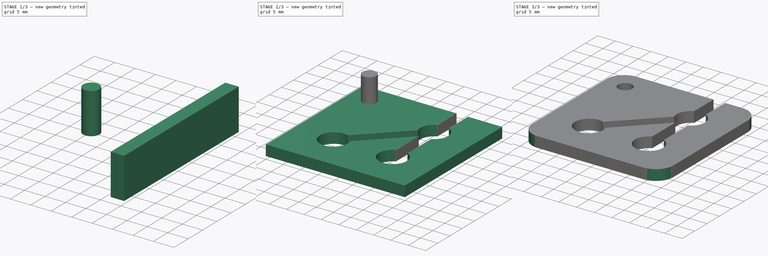
[diagram: build sequence overview — one tinted view per stage of 3, left to right]
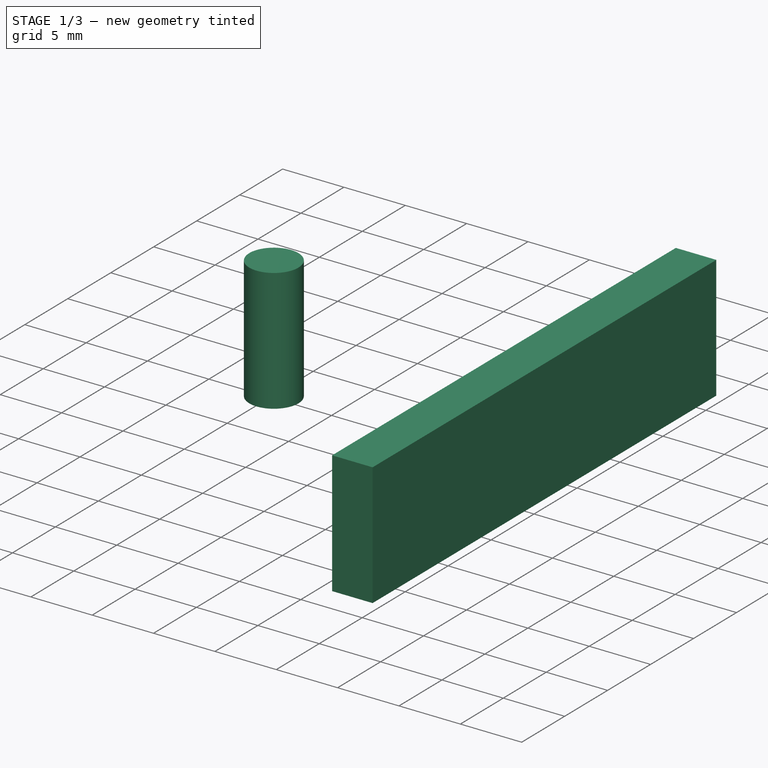
[diagram: stage 1 of 3 — iso view after this stage's code; geometry added in this stage tinted green]
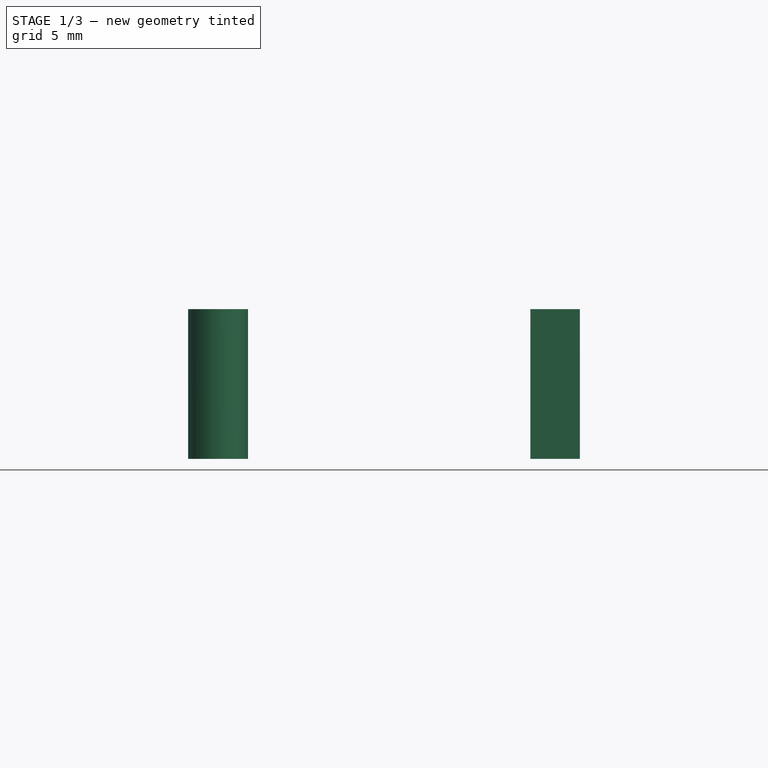
[diagram: stage 1 of 3 — front view after this stage's code; geometry added in this stage tinted green]
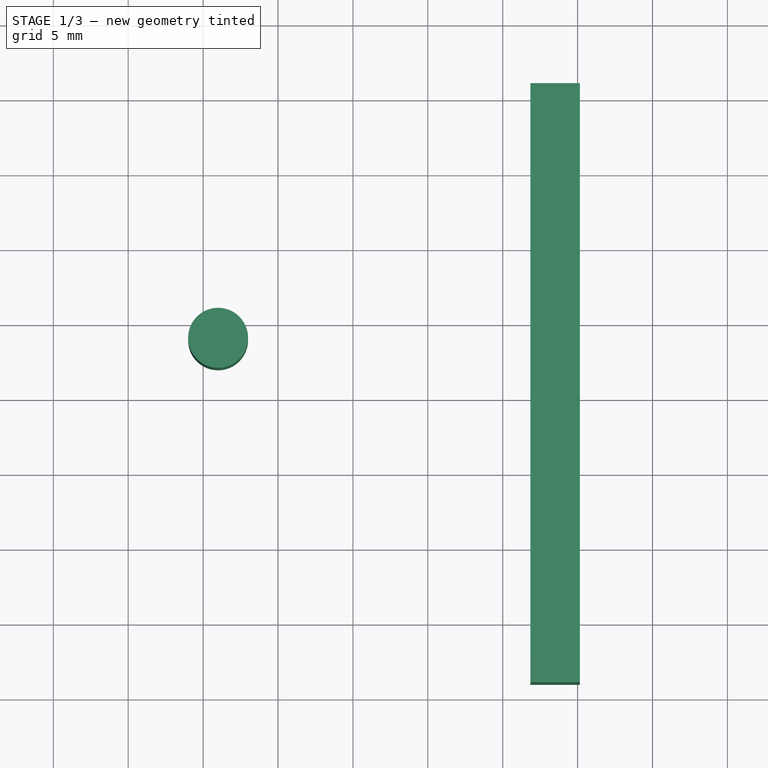
[diagram: stage 1 of 3 — top view after this stage's code; geometry added in this stage tinted green]
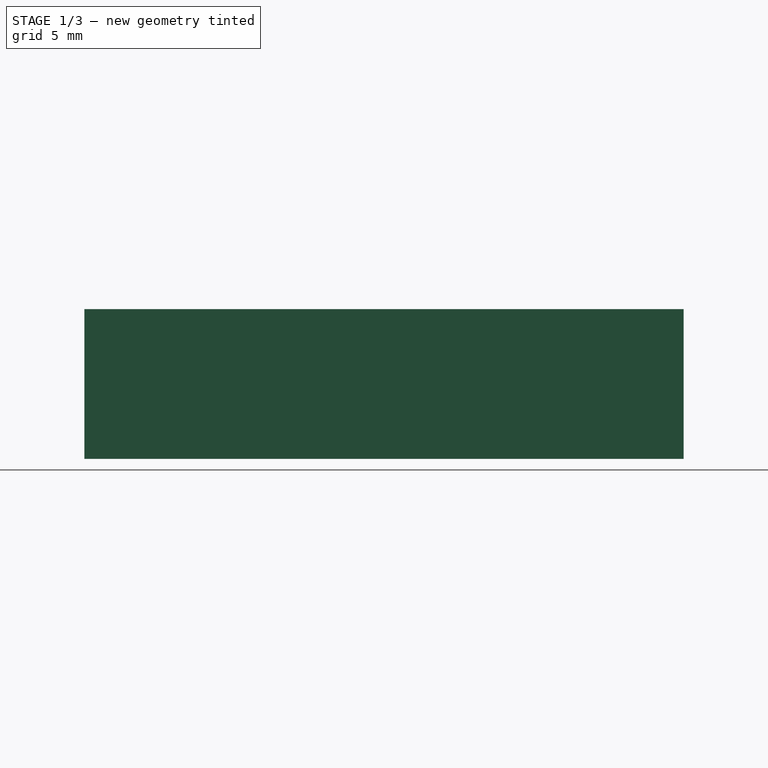
[diagram: stage 1 of 3 — right view after this stage's code; geometry added in this stage tinted green]
FCSTD DOCUMENT  (FreeCAD 0.14R3700 (Git))
Label: git
License: CC-BY 3.0
LicenseURL: http://creativecommons.org/licenses/by/3.0/
objects: Part::Box×2, Part::Cut×2, Part::Feature×2, Sketcher::SketchObject×1, PartDesign::Pocket×1, Part::Fillet×1, Part::Cylinder×1
note: 11 computed .brp shape members not serialized (recipe doc carries the construction recipe); baked Part::Feature solids carry a one-line shape summary decoded from their .brp

FEATURE [Part::Box] Box001  label="Cubo001"
  Height = 10
  Length = 3.3
  Placement = pos=(26.85,11,0) rot=(0,0,1;0rad)
  Width = 40
FEATURE [Part::Cylinder] Cylinder  label="Cilindro"
  Angle = 360
  Height = 10
  Placement = pos=(6,34,0) rot=(0,0,1;0rad)
  Radius = 2
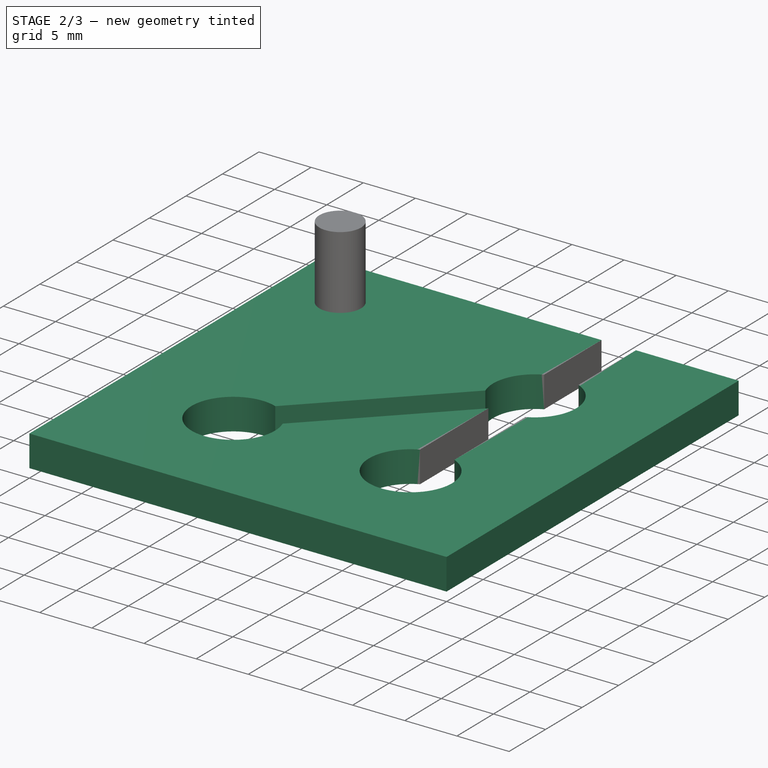
[diagram: stage 2 of 3 — iso view after this stage's code; geometry added in this stage tinted green]
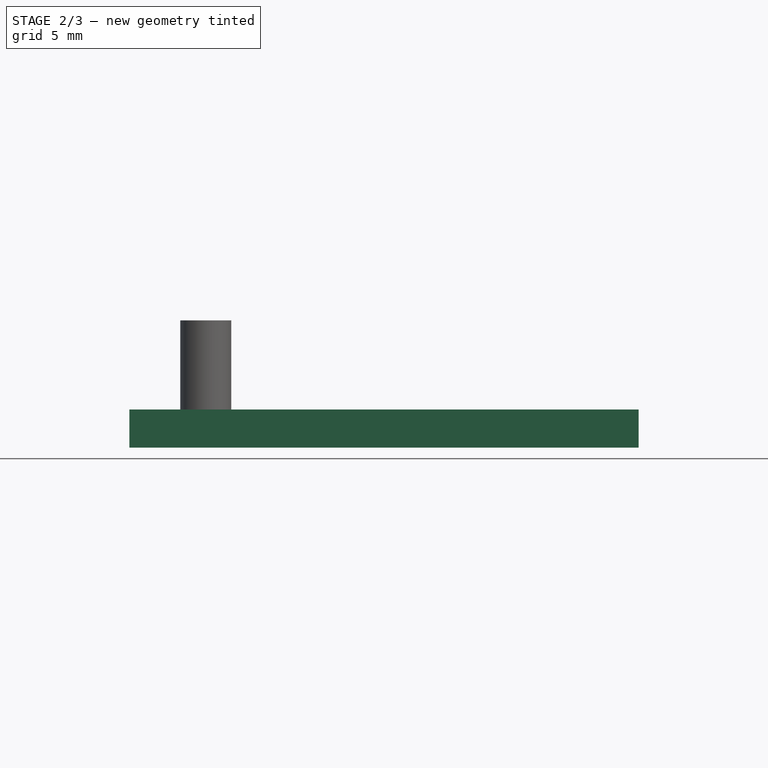
[diagram: stage 2 of 3 — front view after this stage's code; geometry added in this stage tinted green]
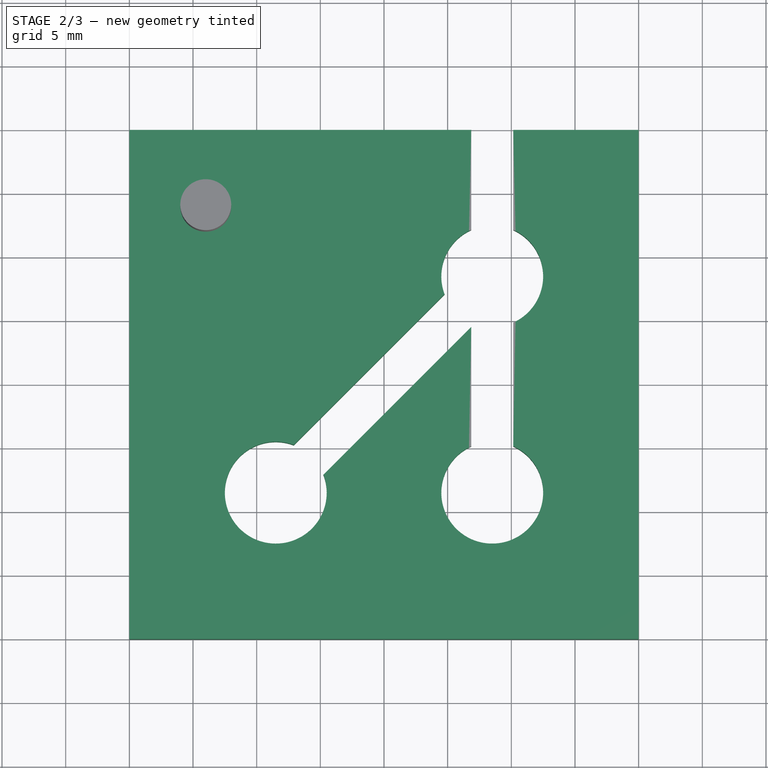
[diagram: stage 2 of 3 — top view after this stage's code; geometry added in this stage tinted green]
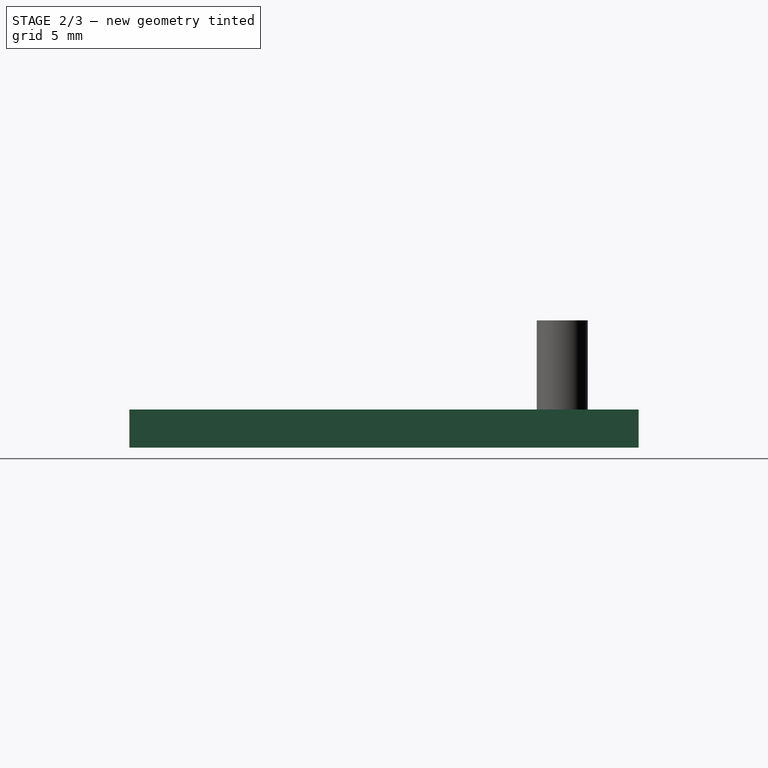
[diagram: stage 2 of 3 — right view after this stage's code; geometry added in this stage tinted green]
FEATURE [Part::Box] Box  label="Cubo"
  Height = 3
  Length = 40
  Width = 40
FEATURE [Sketcher::SketchObject] Sketch
  Placement = pos=(0,0,3) rot=(0,0,1;0rad)
  Support = -> Box [Face6]
  sketch-geometry (7):
    g0: LineSegment [constr] StartX=28.5 StartY=28.5 StartZ=0 EndX=28.5 EndY=11.5 EndZ=0
    g1: ArcOfCircle CenterX=28.5 CenterY=28.5 CenterZ=0 NormalX=0 NormalY=0 NormalZ=1 Radius=4 StartAngle=4.35219 EndAngle=9.78498
    g2: Circle CenterX=28.5 CenterY=11.5 CenterZ=0 NormalX=0 NormalY=0 NormalZ=1 Radius=4
    g3: ArcOfCircle CenterX=11.5 CenterY=11.5 CenterZ=0 NormalX=0 NormalY=0 NormalZ=1 Radius=4 StartAngle=1.21059 EndAngle=6.64339
    g4: LineSegment [constr] StartX=28.5 StartY=28.5 StartZ=0 EndX=11.5 EndY=11.5 EndZ=0
    g5: LineSegment StartX=12.9099 StartY=15.2433 StartZ=0 EndX=24.7567 EndY=27.0901 EndZ=0
    g6: LineSegment StartX=27.0901 StartY=24.7567 StartZ=0 EndX=15.2433 EndY=12.9099 EndZ=0
  constraints (22):
    c: Vertical(g0)
    c: Equal(g1,g3)
    c: Equal(g3,g2)
    c: DistanceY(g-1,g3) = 11.5
    c: DistanceX(g-1,g3) = 11.5
    c: DistanceX(g-1,g2) = 28.5
    c: DistanceX(g-1,g1) = 28.5
    c: DistanceY(g-1,g1) = 28.5
    c: Coincident(g0,g1)
    c: Coincident(g0,g2)
    c: DistanceY(g-1,g0) = 11.5
    c: Coincident(g4,g0)
    c: Radius(g2) = 4
    c: Parallel(g5,g4)
    c: Coincident(g1,g6)
    c: Coincident(g3,g5)
    c: Coincident(g3,g6)
    c: Coincident(g4,g3)
    c: Coincident(g1,g5)
    c: Symmetric(g3,g3,g4)
    c: Distance(g3,g3) = 3.3
    c: Parallel(g4,g6)
FEATURE [PartDesign::Pocket] Pocket
  Length = 5
  Sketch = -> Sketch
  Type = 0
FEATURE [Part::Cut] Cut
  Base = -> Pocket
  Tool = -> Box001
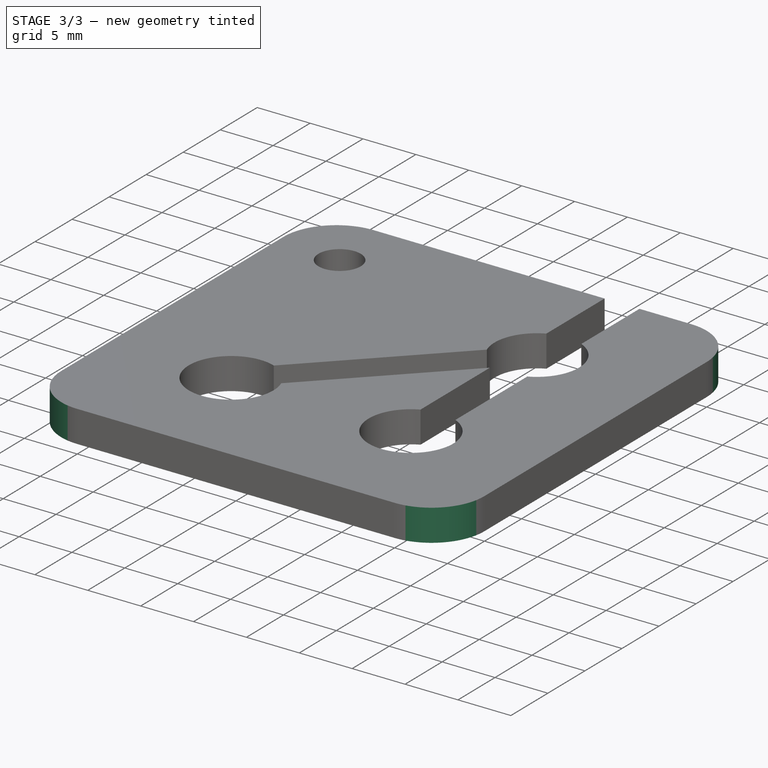
[diagram: stage 3 of 3 — iso view after this stage's code; geometry added in this stage tinted green]
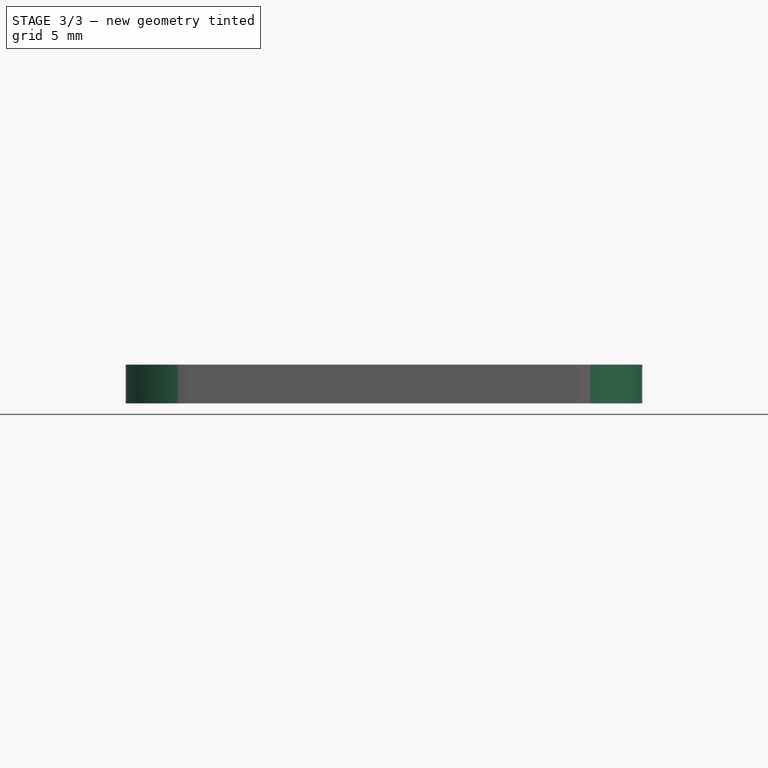
[diagram: stage 3 of 3 — front view after this stage's code; geometry added in this stage tinted green]
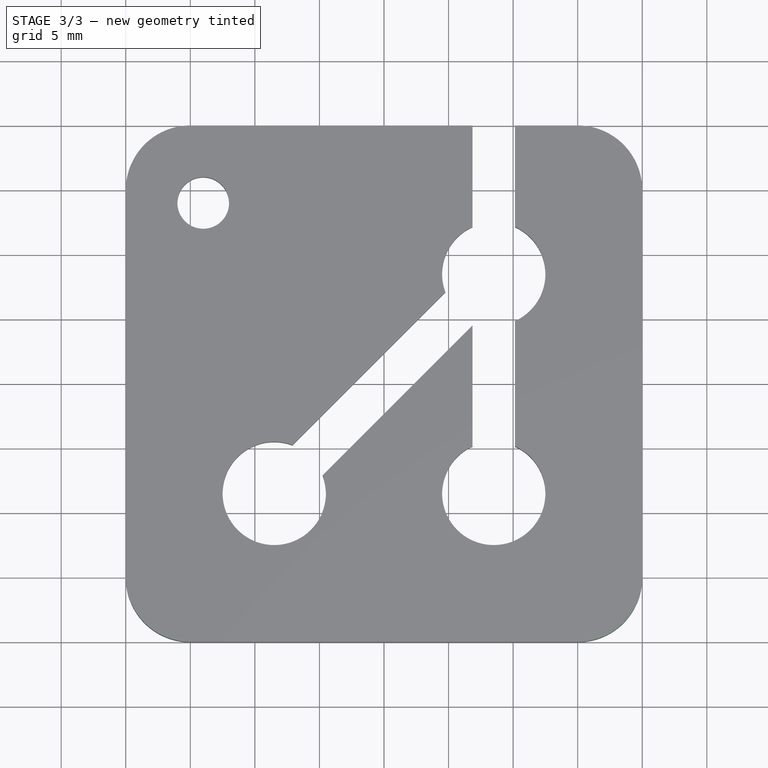
[diagram: stage 3 of 3 — top view after this stage's code; geometry added in this stage tinted green]
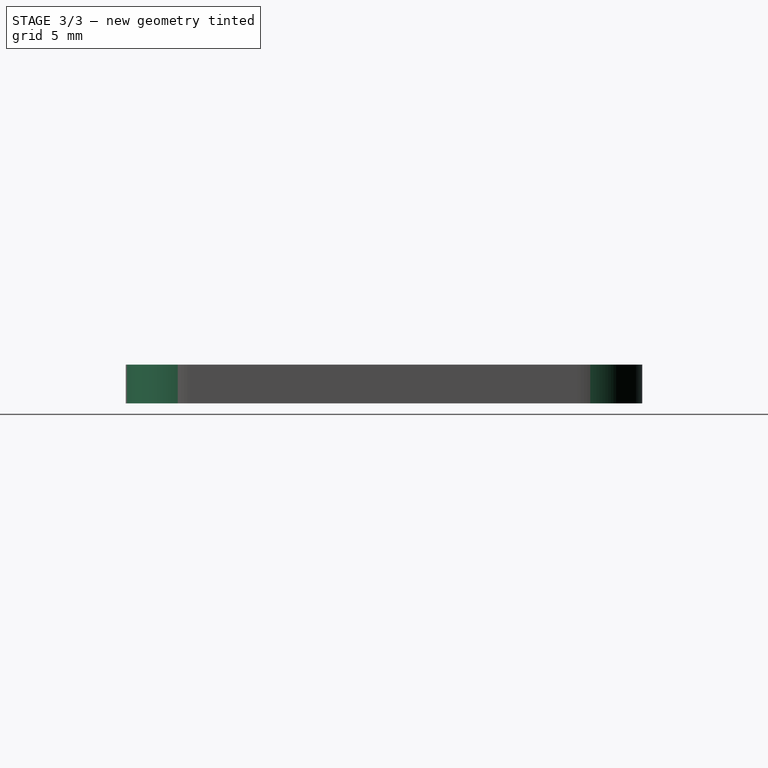
[diagram: stage 3 of 3 — right view after this stage's code; geometry added in this stage tinted green]
FEATURE [Part::Fillet] Fillet
  Base = -> Cut
  Edges = 4 edges r=5: [Edge1,Edge3,Edge6,Edge37]
FEATURE [Part::Feature] Sweep  label="key-ring-model-1"
  Placement = pos=(4.8,42.7546,1.6391) rot=(0.333333,0.881917,0.333333;1.69612rad)
  shape: bbox 3.31 x 27.02 x 26.33 mm, 4 faces (baked)
FEATURE [Part::Feature] Cut002  label="key-model-1"
  Placement = pos=(0.53024,48.0266,0) rot=(0,0,1;0.517888rad)
  shape: bbox 49.82 x 36.6 x 2.3 mm, 44 faces (baked)
FEATURE [Part::Cut] Cut003
  Base = -> Fillet
  Tool = -> Cylinder
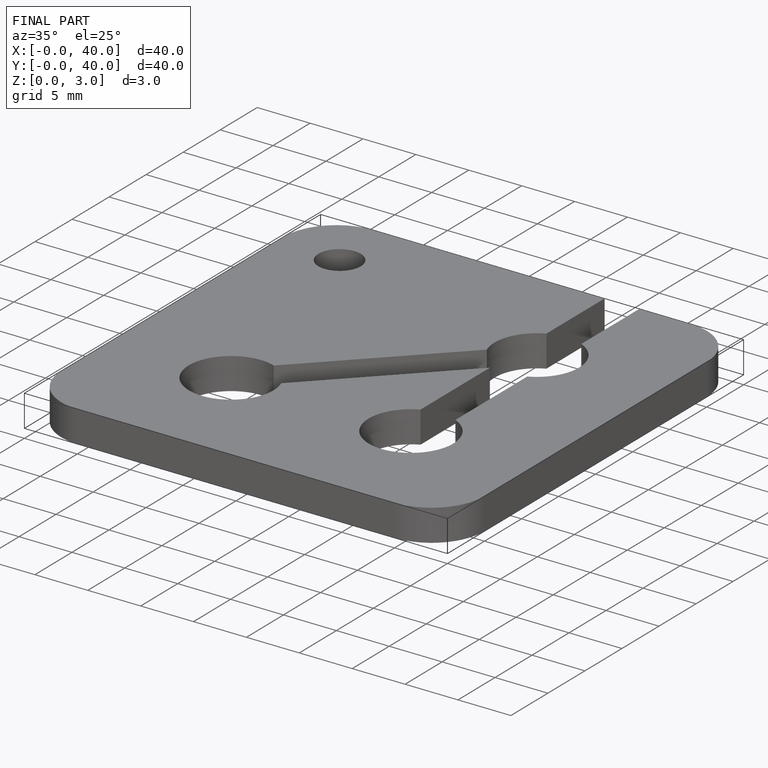
[diagram: finished part — iso view with bounding-box wireframe]
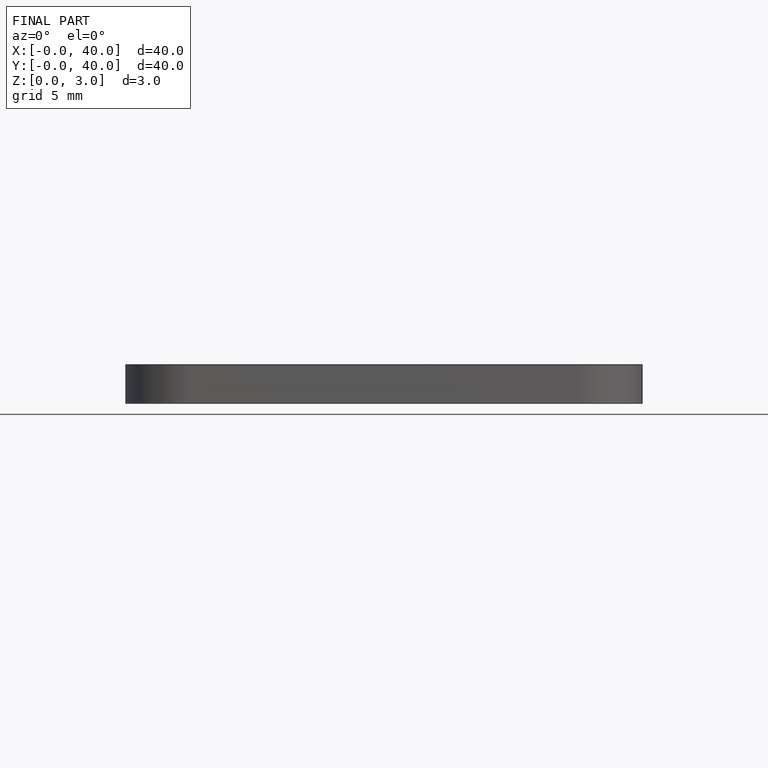
[diagram: finished part — front view with bounding-box wireframe]
